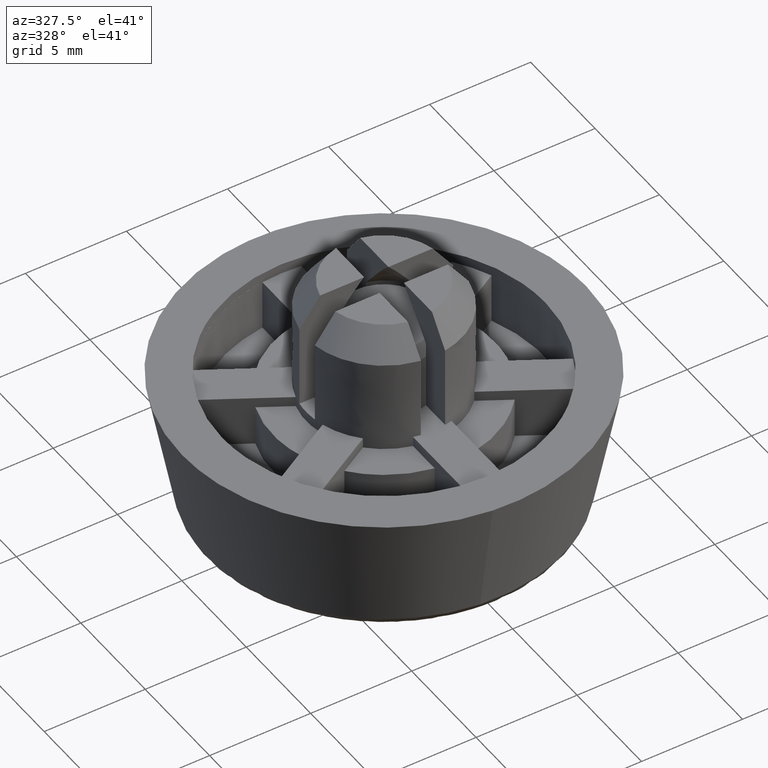
[diagram: clean part render]
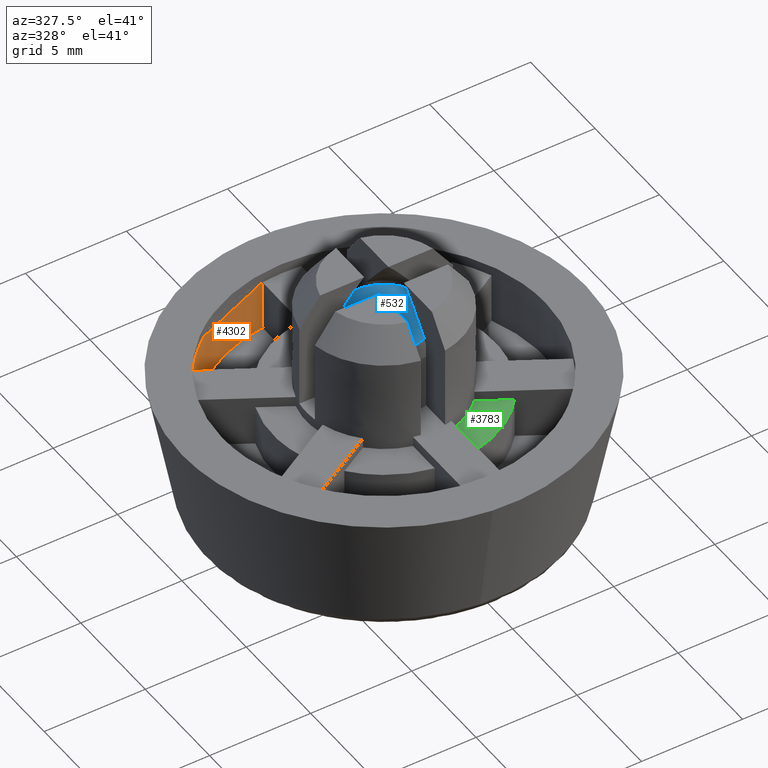
[diagram: same view with three faces highlighted in distinct colors, each labeled with its STEP entity id]
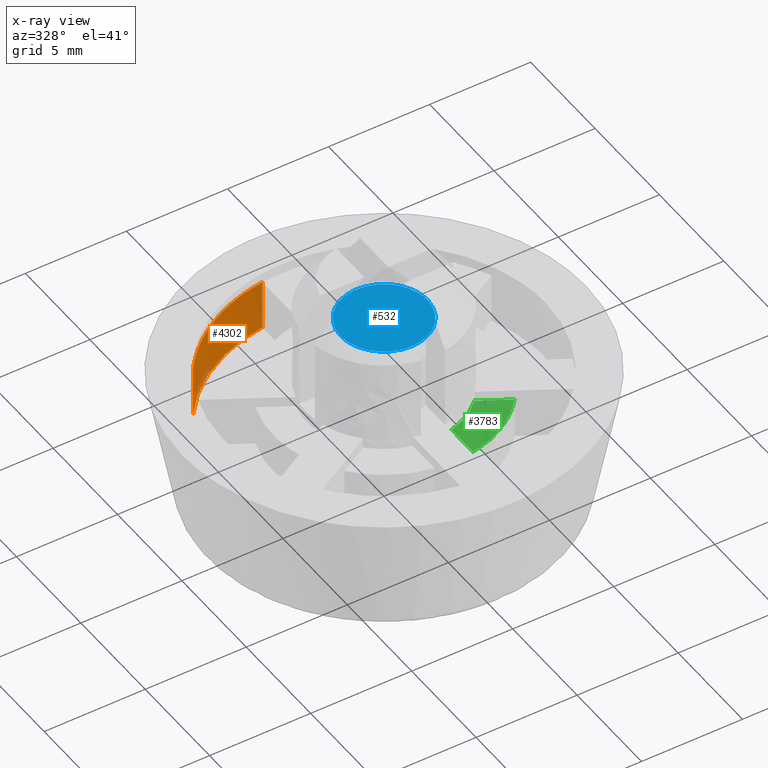
[diagram: x-ray of the same camera — body ghosted, the three highlighted faces saturated]
A machine part, auxiliary view with three faces highlighted in distinct colors.
The next image is the same camera in x-ray (body ghosted, the three faces saturated) — at least one of them is partly hidden behind the body in this view.
Their STEP definitions:

[orange] entity #4302 — the highlighted face is a freeform B-spline surface patch.
#1869=CARTESIAN_POINT('',(-6.409894222856880,4.786779298420400,-0.499999999999945));
#1870=VERTEX_POINT('',#1869);
#1878=CARTESIAN_POINT('',(-0.959472738692178,7.942254847567320,-0.499999999999945));
#1879=VERTEX_POINT('',#1878);
#1880=CARTESIAN_POINT('',(-6.409894222856877,4.786779298420396,-0.499999999999945));
#1881=CARTESIAN_POINT('',(-4.360252087495875,7.531419998005179,-0.499999999999945));
#1882=CARTESIAN_POINT('',(-0.959472738692178,7.942254847567318,-0.499999999999945));
#1890=(BOUNDED_CURVE()B_SPLINE_CURVE(2,(#1880,#1881,#1882),.UNSPECIFIED.,.F.,.U.)CURVE()GEOMETRIC_REPRESENTATION_ITEM()QUASI_UNIFORM_CURVE()RATIONAL_B_SPLINE_CURVE((1.0,0.919272554845703,1.0))REPRESENTATION_ITEM(''));
#1891=EDGE_CURVE('',#1870,#1879,#1890,.T.);
#4218=CARTESIAN_POINT('',(-0.959472738692178,7.942254847567320,-3.0));
#4219=VERTEX_POINT('',#4218);
#4225=CARTESIAN_POINT('',(-6.409894222856880,4.786779298420400,-3.0));
#4226=VERTEX_POINT('',#4225);
#4227=CARTESIAN_POINT('',(-6.409894222856877,4.786779298420396,-3.0));
#4228=CARTESIAN_POINT('',(-4.360252087495875,7.531419998005179,-3.000000000000000));
#4229=CARTESIAN_POINT('',(-0.959472738692178,7.942254847567318,-3.0));
#4237=(BOUNDED_CURVE()B_SPLINE_CURVE(2,(#4227,#4228,#4229),.UNSPECIFIED.,.F.,.U.)CURVE()GEOMETRIC_REPRESENTATION_ITEM()QUASI_UNIFORM_CURVE()RATIONAL_B_SPLINE_CURVE((1.0,0.919272554845703,1.0))REPRESENTATION_ITEM(''));
#4238=EDGE_CURVE('',#4226,#4219,#4237,.T.);
#4270=CARTESIAN_POINT('',(-6.409894222856880,4.786779298420400,-3.0));
#4271=CARTESIAN_POINT('',(-6.409894222856880,4.786779298420400,-0.499999999999945));
#4272=QUASI_UNIFORM_CURVE('',1,(#4270,#4271),.UNSPECIFIED.,.F.,.U.);
#4273=EDGE_CURVE('',#4226,#1870,#4272,.T.);
#4278=CARTESIAN_POINT('',(-6.533000986453335,4.617347518976637,-3.062500000000002));
#4279=CARTESIAN_POINT('',(-6.533000986453335,4.617347518976637,-0.435937499999943));
#4280=CARTESIAN_POINT('',(-4.374465498385394,7.671420103915581,-3.062500000000002));
#4281=CARTESIAN_POINT('',(-4.374465498385394,7.671420103915581,-0.435937499999943));
#4282=CARTESIAN_POINT('',(-0.646839317936138,7.973807051639254,-3.062500000000002));
#4283=CARTESIAN_POINT('',(-0.646839317936138,7.973807051639254,-0.435937499999943));
#4291=(BOUNDED_SURFACE()B_SPLINE_SURFACE(1,2,((#4278,#4280,#4282),(#4279,#4281,#4283)),.UNSPECIFIED.,.F.,.F.,.U.)B_SPLINE_SURFACE_WITH_KNOTS((2,2),(3,3),(0.0,2.626562500000059),(0.0,7.110435962175735),.UNSPECIFIED.)GEOMETRIC_REPRESENTATION_ITEM()RATIONAL_B_SPLINE_SURFACE(((1.0,0.904338364246147,0.996556937227261),(1.0,0.904338364246147,0.996556937227261)))REPRESENTATION_ITEM('')SURFACE());
#4292=ORIENTED_EDGE('',*,*,#1891,.F.);
#4293=ORIENTED_EDGE('',*,*,#4273,.F.);
#4294=ORIENTED_EDGE('',*,*,#4238,.T.);
#4295=CARTESIAN_POINT('',(-0.959472738692178,7.942254847567320,-3.0));
#4296=CARTESIAN_POINT('',(-0.959472738692178,7.942254847567320,-0.499999999999945));
#4297=QUASI_UNIFORM_CURVE('',1,(#4295,#4296),.UNSPECIFIED.,.F.,.U.);
#4298=EDGE_CURVE('',#4219,#1879,#4297,.T.);
#4299=ORIENTED_EDGE('',*,*,#4298,.T.);
#4300=EDGE_LOOP('',(#4292,#4293,#4294,#4299));
#4301=FACE_OUTER_BOUND('',#4300,.T.);
#4302=ADVANCED_FACE('',(#4301),#4291,.F.);

[blue] entity #532 — the highlighted face is a freeform B-spline surface patch.
#418=CARTESIAN_POINT('',(-0.131254360014220,2.145989816607121,2.899978999997500));
#419=VERTEX_POINT('',#418);
#425=CARTESIAN_POINT('',(2.150000000000050,-3.612576E-016,2.899979000000100));
#426=VERTEX_POINT('',#425);
#427=CARTESIAN_POINT('',(-0.131254360014220,2.145989816607121,2.899978999997500));
#428=CARTESIAN_POINT('',(-0.065688441099152,2.150000000000963,2.899978999997537));
#429=CARTESIAN_POINT('',(-5.502352E-014,2.150000000000949,2.899978999997577));
#430=CARTESIAN_POINT('',(2.150000000000023,2.150000000000484,2.899978999998877));
#431=CARTESIAN_POINT('',(2.150000000000050,-3.612576E-016,2.899979000000100));
#439=(BOUNDED_CURVE()B_SPLINE_CURVE(2,(#427,#428,#429,#430,#431),.UNSPECIFIED.,.F.,.U.)B_SPLINE_CURVE_WITH_KNOTS((3,2,3),(0.239332962240825,0.250000000000000,0.500000000000000),.UNSPECIFIED.)CURVE()GEOMETRIC_REPRESENTATION_ITEM()RATIONAL_B_SPLINE_CURVE((0.976072041670752,0.987502787902042,1.0,0.707106781186548,1.0))REPRESENTATION_ITEM(''));
#440=EDGE_CURVE('',#419,#426,#439,.T.);
#442=CARTESIAN_POINT('',(0.131254360014220,-2.145989816607122,2.899978999997500));
#443=VERTEX_POINT('',#442);
#444=CARTESIAN_POINT('',(2.150000000000050,-3.612576E-016,2.899979000000100));
#445=CARTESIAN_POINT('',(2.150000000000078,-2.022518043834329,2.899978999998801));
#446=CARTESIAN_POINT('',(0.131254360014220,-2.145989816607122,2.899978999997500));
#454=(BOUNDED_CURVE()B_SPLINE_CURVE(2,(#444,#445,#446),.UNSPECIFIED.,.F.,.U.)B_SPLINE_CURVE_WITH_KNOTS((3,3),(0.500000000000000,0.739332962240825),.UNSPECIFIED.)CURVE()GEOMETRIC_REPRESENTATION_ITEM()RATIONAL_B_SPLINE_CURVE((1.0,0.719603993284505,0.976072041670752))REPRESENTATION_ITEM(''));
#455=EDGE_CURVE('',#426,#443,#454,.T.);
#487=CARTESIAN_POINT('',(-2.150000000000050,-3.612576E-016,2.899979000000100));
#488=VERTEX_POINT('',#487);
#489=CARTESIAN_POINT('',(0.131254360014220,-2.145989816607122,2.899978999997500));
#490=CARTESIAN_POINT('',(0.065688441099153,-2.150000000000964,2.899978999997538));
#491=CARTESIAN_POINT('',(5.513125E-014,-2.150000000000950,2.899978999997578));
#492=CARTESIAN_POINT('',(-2.150000000000023,-2.150000000000486,2.899978999998877));
#493=CARTESIAN_POINT('',(-2.150000000000050,-3.612576E-016,2.899979000000100));
#501=(BOUNDED_CURVE()B_SPLINE_CURVE(2,(#489,#490,#491,#492,#493),.UNSPECIFIED.,.F.,.U.)B_SPLINE_CURVE_WITH_KNOTS((3,2,3),(0.739332962240825,0.750000000000000,1.0),.UNSPECIFIED.)CURVE()GEOMETRIC_REPRESENTATION_ITEM()RATIONAL_B_SPLINE_CURVE((0.976072041670752,0.987502787902042,1.0,0.707106781186548,1.0))REPRESENTATION_ITEM(''));
#502=EDGE_CURVE('',#443,#488,#501,.T.);
#504=CARTESIAN_POINT('',(-2.150000000000050,-3.612576E-016,2.899979000000100));
#505=CARTESIAN_POINT('',(-2.150000000000078,2.022518043834329,2.899978999998800));
#506=CARTESIAN_POINT('',(-0.131254360014220,2.145989816607121,2.899978999997500));
#514=(BOUNDED_CURVE()B_SPLINE_CURVE(2,(#504,#505,#506),.UNSPECIFIED.,.F.,.U.)B_SPLINE_CURVE_WITH_KNOTS((3,3),(0.0,0.239332962240825),.UNSPECIFIED.)CURVE()GEOMETRIC_REPRESENTATION_ITEM()RATIONAL_B_SPLINE_CURVE((1.0,0.719603993284505,0.976072041670752))REPRESENTATION_ITEM(''));
#515=EDGE_CURVE('',#488,#419,#514,.T.);
#521=CARTESIAN_POINT('',(2.364784991665820,-2.364732082714795,2.899979000000100));
#522=CARTESIAN_POINT('',(-2.364785107000808,-2.364732082714795,2.899979000000100));
#523=CARTESIAN_POINT('',(2.364784991665820,2.364732005824803,2.899979000000100));
#524=CARTESIAN_POINT('',(-2.364785107000808,2.364732005824803,2.899979000000100));
#525=B_SPLINE_SURFACE_WITH_KNOTS('',1,1,((#521,#523),(#522,#524)),.UNSPECIFIED.,.F.,.F.,.U.,(2,2),(2,2),(0.0,4.729570098666629),(0.0,4.729464088539599),.UNSPECIFIED.);
#526=ORIENTED_EDGE('',*,*,#502,.F.);
#527=ORIENTED_EDGE('',*,*,#455,.F.);
#528=ORIENTED_EDGE('',*,*,#440,.F.);
#529=ORIENTED_EDGE('',*,*,#515,.F.);
#530=EDGE_LOOP('',(#526,#527,#528,#529));
#531=FACE_OUTER_BOUND('',#530,.T.);
#532=ADVANCED_FACE('',(#531),#525,.F.);

[green] entity #3783 — the highlighted face is a freeform B-spline surface patch.
#2739=CARTESIAN_POINT('',(4.220755888027985,-3.526360692509645,-1.0));
#2740=VERTEX_POINT('',#2739);
#2746=CARTESIAN_POINT('',(0.956457915560998,-5.416196844258961,-1.0));
#2747=VERTEX_POINT('',#2746);
#2748=CARTESIAN_POINT('',(0.956457915560995,-5.416196844258960,-1.0));
#2749=CARTESIAN_POINT('',(2.933529944955546,-5.067061418327560,-1.0));
#2750=CARTESIAN_POINT('',(4.220755888027985,-3.526360692509644,-1.0));
#2758=(BOUNDED_CURVE()B_SPLINE_CURVE(2,(#2748,#2749,#2750),.UNSPECIFIED.,.F.,.U.)CURVE()GEOMETRIC_REPRESENTATION_ITEM()QUASI_UNIFORM_CURVE()RATIONAL_B_SPLINE_CURVE((1.0,0.939372386164476,1.0))REPRESENTATION_ITEM(''));
#2759=EDGE_CURVE('',#2747,#2740,#2758,.T.);
#3748=CARTESIAN_POINT('',(1.003728957273403,-5.874883914731822,-1.0));
#3749=CARTESIAN_POINT('',(0.016490118309205,-4.164935509694362,-1.0));
#3750=CARTESIAN_POINT('',(4.596603871214192,-3.800537315657217,-1.0));
#3751=CARTESIAN_POINT('',(3.609365032249994,-2.090588910619758,-1.0));
#3752=B_SPLINE_SURFACE_WITH_KNOTS('',1,1,((#3748,#3750),(#3749,#3751)),.UNSPECIFIED.,.F.,.F.,.U.,(2,2),(2,2),(0.0,1.974478177405243),(0.0,4.148694247629898),.UNSPECIFIED.);
#3753=CARTESIAN_POINT('',(2.759302202182640,-2.684911796880865,-1.0));
#3754=VERTEX_POINT('',#3753);
#3755=CARTESIAN_POINT('',(2.759302202182640,-2.684911796880865,-1.0));
#3756=CARTESIAN_POINT('',(4.220755888027985,-3.526360692509645,-1.0));
#3757=QUASI_UNIFORM_CURVE('',1,(#3755,#3756),.UNSPECIFIED.,.F.,.U.);
#3758=EDGE_CURVE('',#3754,#2740,#3757,.T.);
#3759=ORIENTED_EDGE('',*,*,#3758,.F.);
#3760=CARTESIAN_POINT('',(0.954447065697153,-3.729815893838055,-1.0));
#3761=VERTEX_POINT('',#3760);
#3762=CARTESIAN_POINT('',(0.954447065697153,-3.729815893838055,-1.0));
#3763=CARTESIAN_POINT('',(2.003872459944020,-3.461272105541605,-1.0));
#3764=CARTESIAN_POINT('',(2.759302202182640,-2.684911796880865,-1.0));
#3772=(BOUNDED_CURVE()B_SPLINE_CURVE(2,(#3762,#3763,#3764),.UNSPECIFIED.,.F.,.U.)CURVE()GEOMETRIC_REPRESENTATION_ITEM()QUASI_UNIFORM_CURVE()RATIONAL_B_SPLINE_CURVE((1.0,0.962623060443368,1.0))REPRESENTATION_ITEM(''));
#3773=EDGE_CURVE('',#3761,#3754,#3772,.T.);
#3774=ORIENTED_EDGE('',*,*,#3773,.F.);
#3775=CARTESIAN_POINT('',(0.956457915560998,-5.416196844258961,-1.0));
#3776=CARTESIAN_POINT('',(0.954447065697153,-3.729815893838055,-1.0));
#3777=QUASI_UNIFORM_CURVE('',1,(#3775,#3776),.UNSPECIFIED.,.F.,.U.);
#3778=EDGE_CURVE('',#2747,#3761,#3777,.T.);
#3779=ORIENTED_EDGE('',*,*,#3778,.F.);
#3780=ORIENTED_EDGE('',*,*,#2759,.T.);
#3781=EDGE_LOOP('',(#3759,#3774,#3779,#3780));
#3782=FACE_OUTER_BOUND('',#3781,.T.);
#3783=ADVANCED_FACE('',(#3782),#3752,.F.);